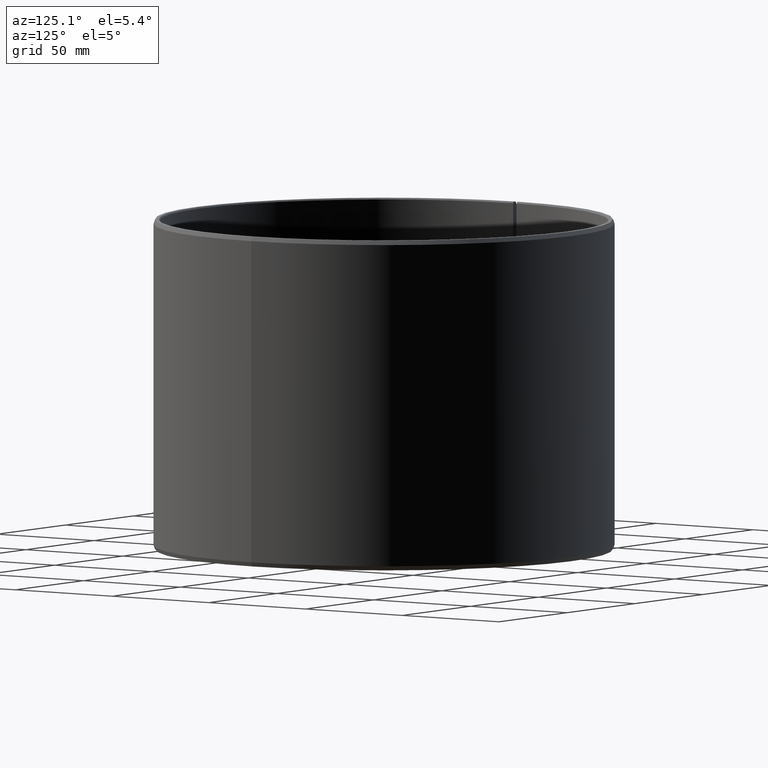
[diagram: clean part render]
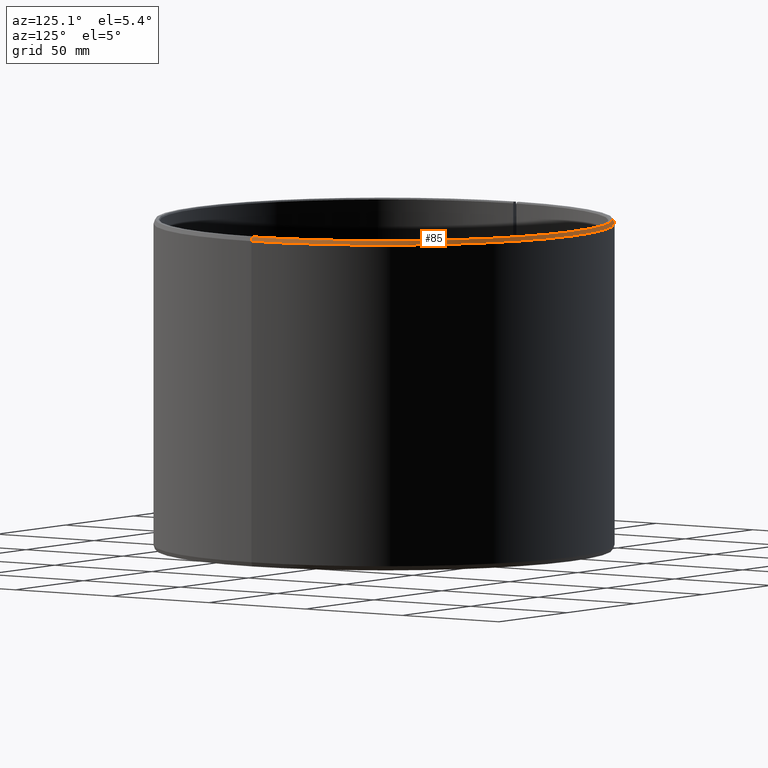
[diagram: same view with one face highlighted and labeled with its STEP entity id]
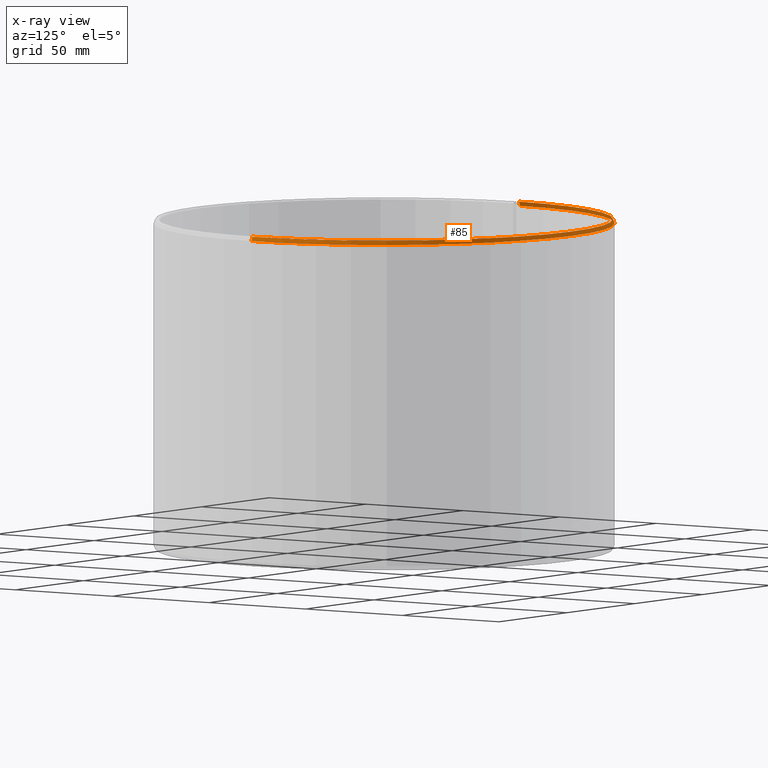
[diagram: x-ray of the same camera — body ghosted, the highlighted face saturated]
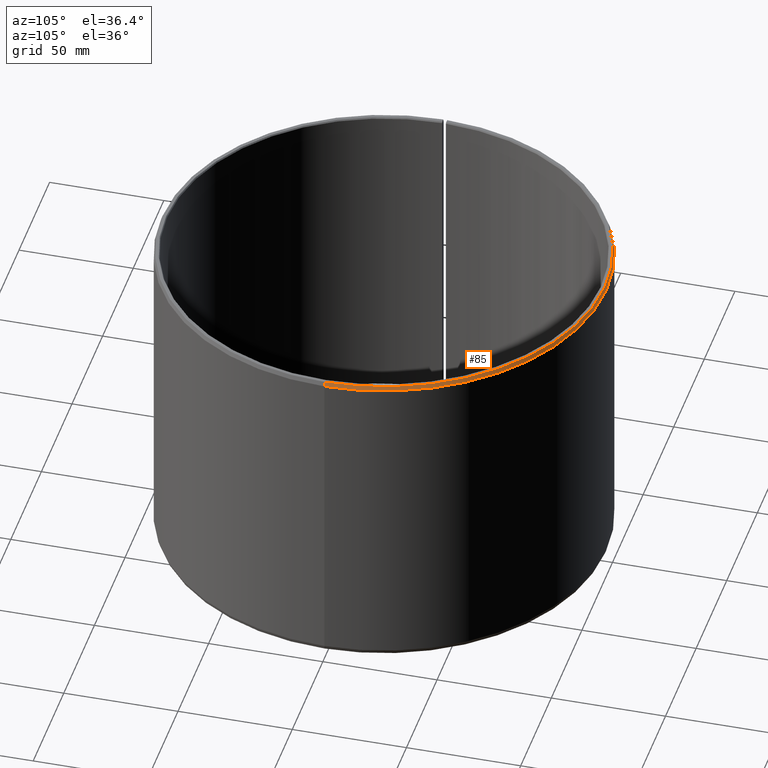
[diagram: same view with one face highlighted and labeled with its STEP entity id]
A machine part, auxiliary view. The second image highlights one B-rep face of the part: STEP entity #85.
The next image is the same camera in x-ray: the body ghosted, the highlighted face saturated — about 0% of this face is hidden behind the body in this view.
A second angle (auxiliary view) of the same face is appended — the face is thin or edge-on in the first view.
In plain terms, the highlighted conical surface has half-angle 20 deg.
Its self-contained STEP definition (entity closure, byte-faithful):
#85=ADVANCED_FACE('',(#112),#113,.T.);
#112=FACE_OUTER_BOUND('',#144,.T.);
#113=CONICAL_SURFACE('',#145,97.1724267891604,0.349065850398854);
#144=EDGE_LOOP('',(#228,#229,#230,#231));
#145=AXIS2_PLACEMENT_3D('',#232,#233,#234);
#228=ORIENTED_EDGE('',*,*,#287,.T.);
#229=ORIENTED_EDGE('',*,*,#309,.T.);
#230=ORIENTED_EDGE('',*,*,#310,.T.);
#231=ORIENTED_EDGE('',*,*,#311,.F.);
#232=CARTESIAN_POINT('',(7.66784843460353E-014,-8.5965906135464E-014,139.1));
#233=DIRECTION('',(-5.48707263966375E-016,6.09939603923743E-016,-1.0));
#234=DIRECTION('',(-1.0,1.89882151931499E-015,5.48707263966376E-016));
#287=EDGE_CURVE('',#331,#332,#333,.T.);
#309=EDGE_CURVE('',#332,#366,#368,.T.);
#310=EDGE_CURVE('',#366,#369,#370,.T.);
#311=EDGE_CURVE('',#331,#369,#371,.T.);
#331=VERTEX_POINT('',#397);
#332=VERTEX_POINT('',#398);
#333=LINE('',#399,#400);
#366=VERTEX_POINT('',#444);
#368=CIRCLE('',#447,97.5);
#369=VERTEX_POINT('',#448);
#370=LINE('',#449,#450);
#371=CIRCLE('',#451,96.8448535783209);
#397=CARTESIAN_POINT('',(96.8448535783209,-2.82266017783278E-013,140.0));
#398=CARTESIAN_POINT('',(97.5000000000001,-2.82282627509384E-013,138.2));
#399=CARTESIAN_POINT('',(97.1724267891605,-2.82379191350054E-013,139.1));
#400=VECTOR('',#477,1.0);
#444=CARTESIAN_POINT('',(-97.4851502777481,1.70160962763525,138.2));
#447=AXIS2_PLACEMENT_3D('',#517,#518,#519);
#448=CARTESIAN_POINT('',(-96.8301036380422,1.69017574600817,140.0));
#449=CARTESIAN_POINT('',(-97.4851502777481,1.70160962763524,138.2));
#450=VECTOR('',#520,9.99999999999999);
#451=AXIS2_PLACEMENT_3D('',#521,#522,#523);
#477=DIRECTION('',(0.342020143325657,-1.18164850630498E-016,-0.939692620785913));
#517=CARTESIAN_POINT('',(7.61846478084656E-014,-8.54720695978942E-014,138.2));
#518=DIRECTION('',(5.48707263966375E-016,-6.09939603923743E-016,1.0));
#519=DIRECTION('',(-1.0,1.89882151931499E-015,5.48707263966376E-016));
#520=DIRECTION('',(0.341968052001217,-0.00596907455105851,0.939692620785912));
#521=CARTESIAN_POINT('',(7.71723208836051E-014,-8.64597426730337E-014,140.0));
#522=DIRECTION('',(5.48707263966375E-016,-6.09939603923743E-016,1.0));
#523=DIRECTION('',(-1.0,1.89882151931499E-015,5.48707263966376E-016));